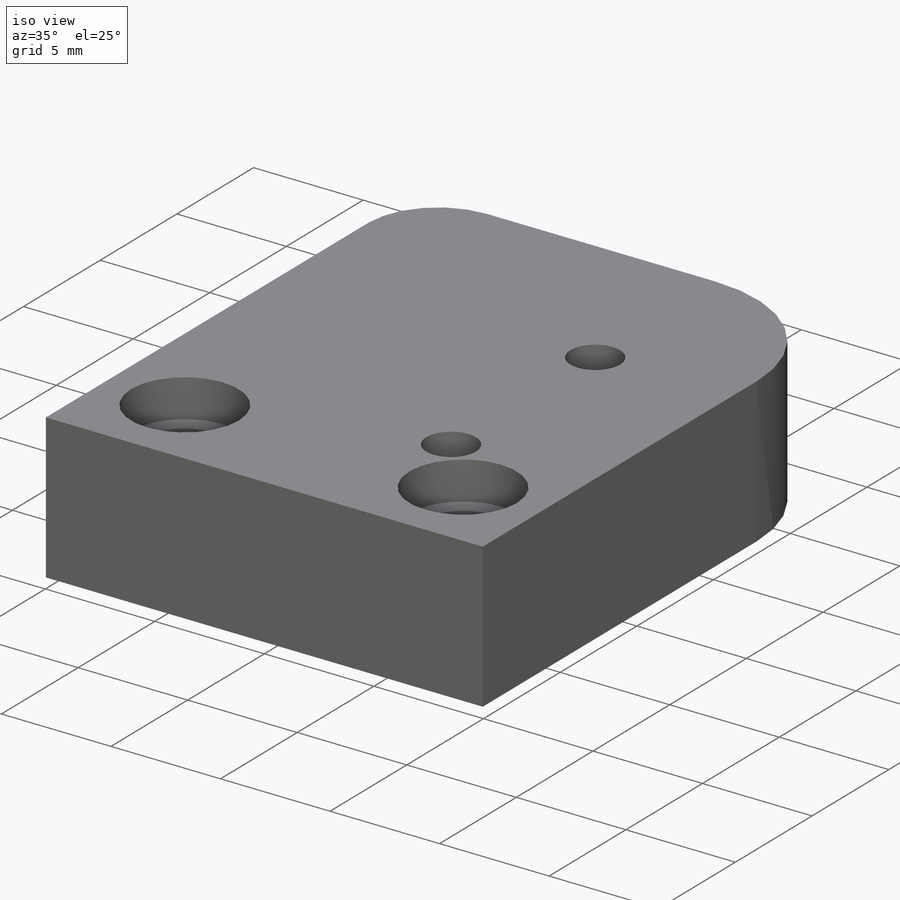
[diagram: iso view]
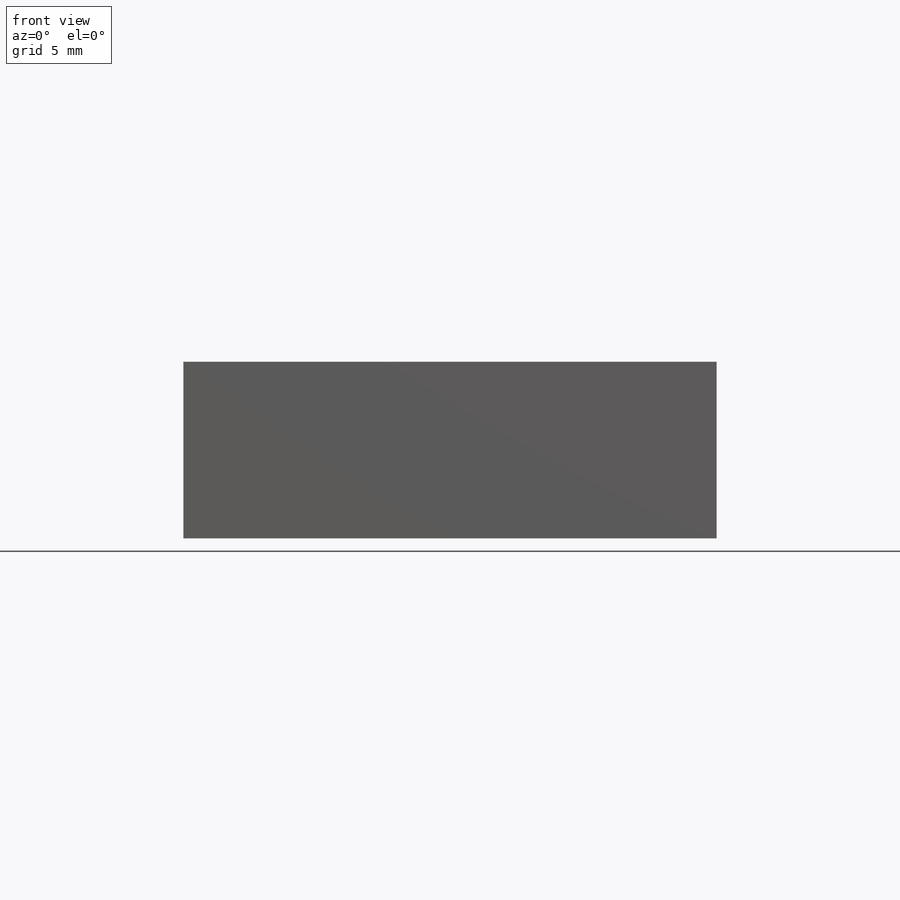
[diagram: front view]
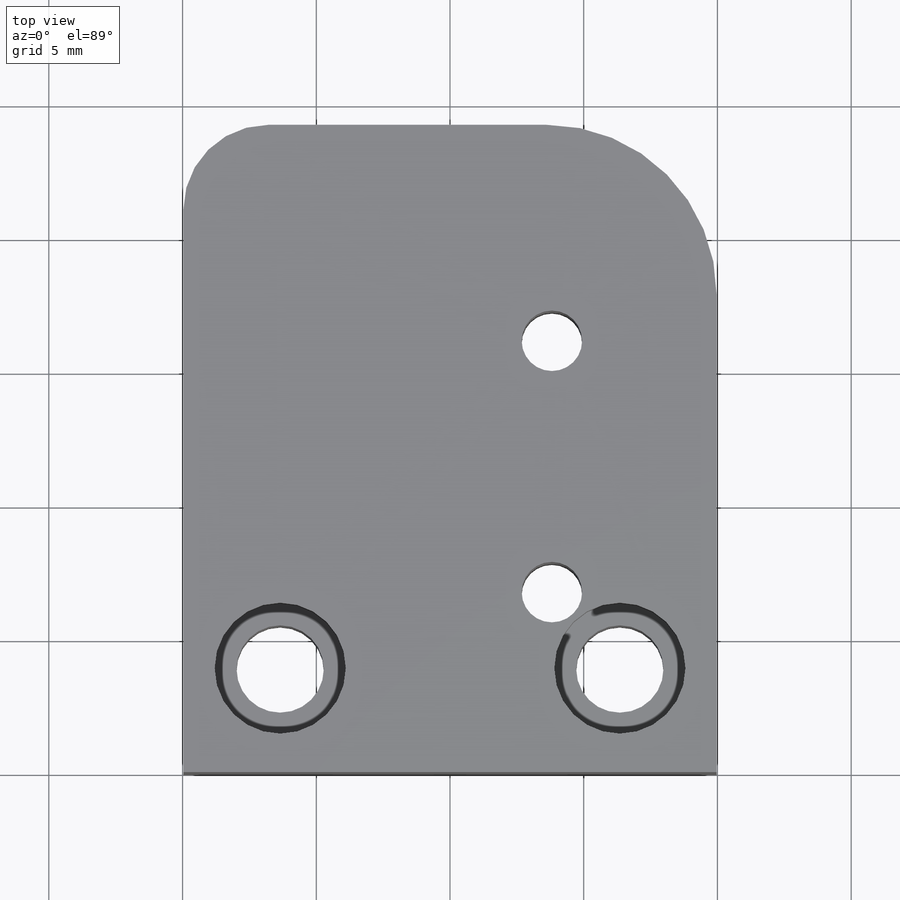
[diagram: top view]
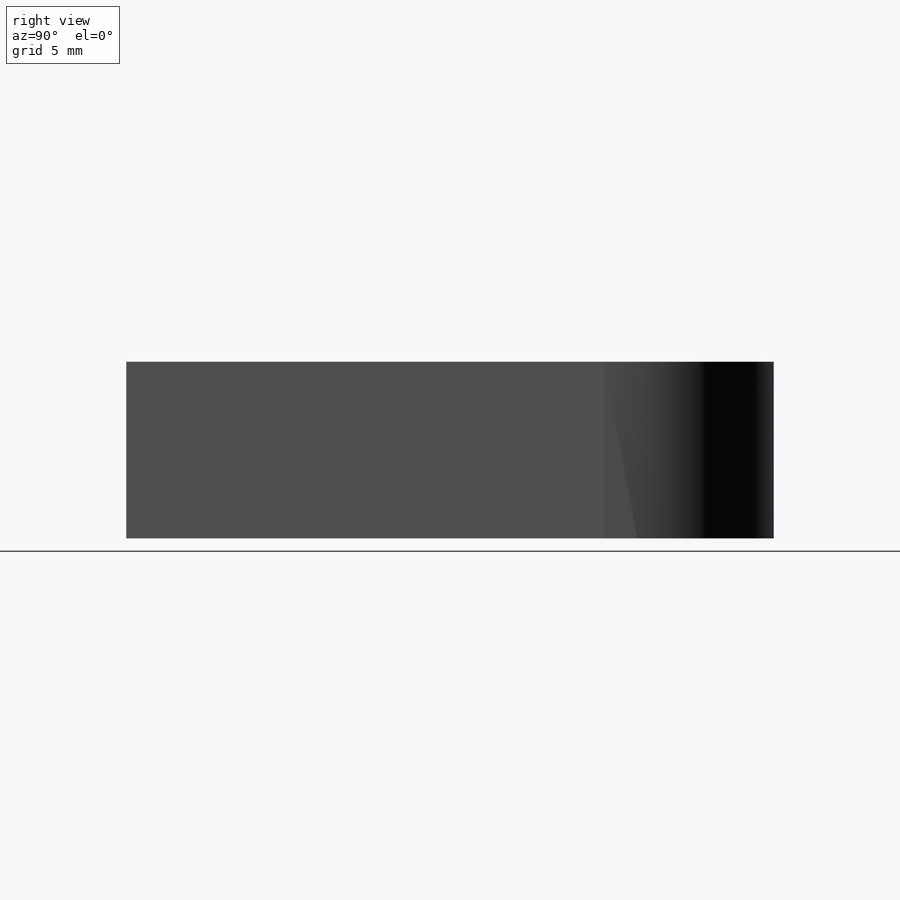
[diagram: right view]
SOLIDWORKS PART (.sldprt)
format: sldprt  version: not decoded by parser v0  size: 408,064 bytes
history: native  units: mm
features: sketch x5, hole x2, fillet x2, material x1, extrude x1 (+12 scaffold rows collapsed)
feature tree (23):
  scaffold x12  (default folders/planes/origin — collapsed)
  material  "Acrylic (Blue)"
  sketch  "Sketch1"  dims[D1=24.2062mm D2=19.939mm D3=12.7mm]
  extrude  "Boss-Extrude1"  Depth=6.604mm
  hole  "#4-40 Tapped Hole1"  Diameter=2.2606mm Depth=6.604mm
  sketch  "Sketch8"  dims[D1=9.398mm D2=3.81mm D3=11.43mm]
  sketch  "Sketch9"  dims[hole-wizard template sketch: 60 standard entries collapsed; hole parameters kept: c18.Thru Tap Drill Depth=6.604mm]
  hole  "CBORE for #4 Binding Head Machine Screw2"  Diameter=3.2639mm Depth=6.604mm
  sketch  "Sketch3"  dims[D1=12.7mm D2=3.8862mm]
  sketch  "Sketch2"  dims[hole-wizard template sketch: 42 standard entries collapsed; hole parameters kept: c12.Thru Hole Depth=6.604mm c12.C'Bore Dia.=4.9022mm c12.C'Bore Depth=1.7272mm]
  fillet  "Fillet1"  Radius=6.35mm
  fillet  "Fillet2"  Radius=3.175mm
decode coverage: 10 of 10 modeling features carry decoded parameters
note: ~ marks probable driven/reference dimensions
note: suppression state not decoded; provenance and decode notes live in map.json
